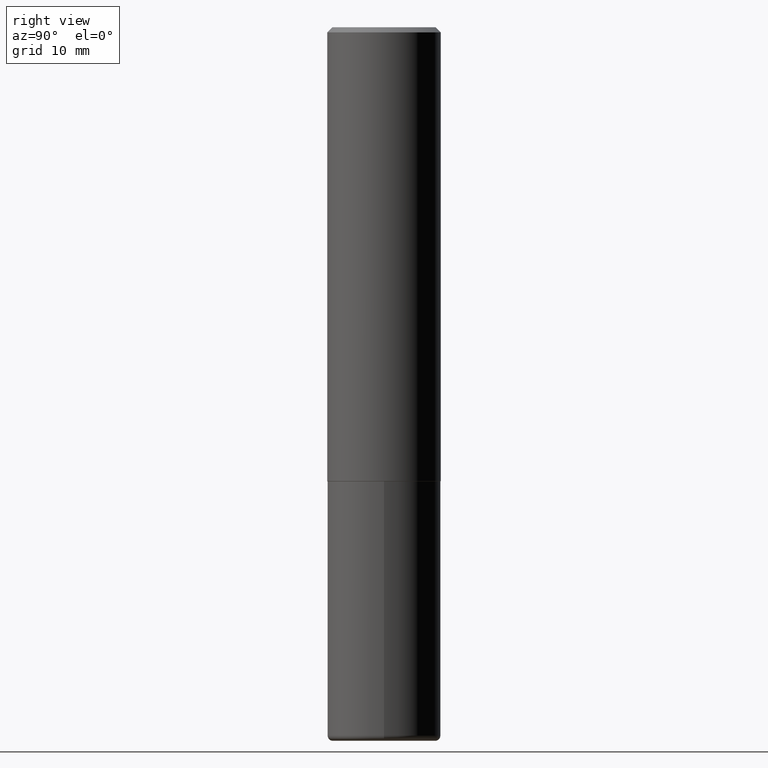
[diagram: clean part render]
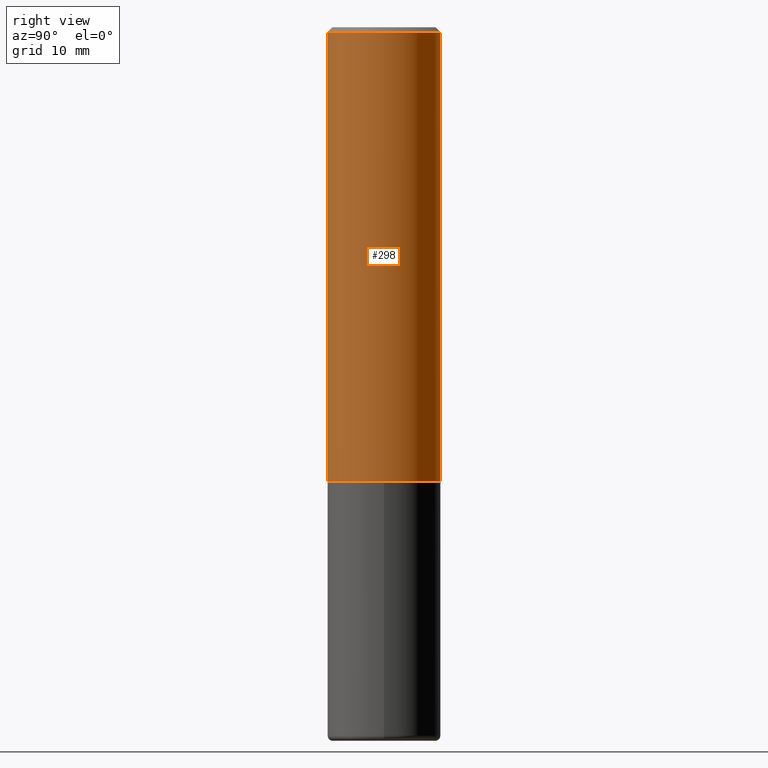
[diagram: same view with one face highlighted and labeled with its STEP entity id]
A machine part, right view. The second image highlights one B-rep face of the part: STEP entity #298.
In plain terms, the highlighted cylindrical surface (partial cylindrical patch) has radius 5.5563 mm, axis along (-0, 0, 1).
Its self-contained STEP definition (entity closure, byte-faithful):
#5 = CARTESIAN_POINT ( 'NONE',  ( 1.554312234475241442E-15, 0.2187499999999940603, -1.749000000000000554 ) ) ;
#18 = AXIS2_PLACEMENT_3D ( 'NONE', #150, #52, #402 ) ;
#34 = EDGE_CURVE ( 'NONE', #268, #336, #279, .T. ) ;
#40 = EDGE_CURVE ( 'NONE', #188, #335, #378, .T. ) ;
#52 = DIRECTION ( 'NONE',  ( -2.445860609712153688E-29, 3.490920253892385141E-15, 1.000000000000000000 ) ) ;
#66 = CYLINDRICAL_SURFACE ( 'NONE', #232, 0.2187500000000000833 ) ;
#67 = DIRECTION ( 'NONE',  ( -6.982962677686265922E-15, -1.000000000000000000, 3.490920253892385141E-15 ) ) ;
#83 = EDGE_LOOP ( 'NONE', ( #106, #270, #214, #368 ) ) ;
#103 = DIRECTION ( 'NONE',  ( -2.445860609712153688E-29, 3.490920253892385141E-15, 1.000000000000000000 ) ) ;
#106 = ORIENTED_EDGE ( 'NONE', *, *, #34, .T. ) ;
#118 = CARTESIAN_POINT ( 'NONE',  ( 4.891721219424319847E-31, -6.981840507784787292E-17, -0.02000000000000005246 ) ) ;
#123 = DIRECTION ( 'NONE',  ( -2.445860609712153688E-29, 3.490920253892384747E-15, 1.000000000000000000 ) ) ;
#130 = FACE_OUTER_BOUND ( 'NONE', #83, .T. ) ;
#150 = CARTESIAN_POINT ( 'NONE',  ( 4.277810206386556213E-29, -6.105619524057781466E-15, -1.748999999999999888 ) ) ;
#154 = LINE ( 'NONE', #257, #391 ) ;
#186 = CARTESIAN_POINT ( 'NONE',  ( -1.527523085743829231E-15, -0.2187500000000063005, -1.748999999999999000 ) ) ;
#188 = VERTEX_POINT ( 'NONE', #412 ) ;
#190 = DIRECTION ( 'NONE',  ( -2.445860609712153688E-29, 3.490920253892385141E-15, 1.000000000000000000 ) ) ;
#202 = EDGE_CURVE ( 'NONE', #336, #335, #154, .T. ) ;
#214 = ORIENTED_EDGE ( 'NONE', *, *, #40, .F. ) ;
#221 = CARTESIAN_POINT ( 'NONE',  ( 0.000000000000000000, 0.000000000000000000, 0.000000000000000000 ) ) ;
#232 = AXIS2_PLACEMENT_3D ( 'NONE', #221, #190, #67 ) ;
#234 = CARTESIAN_POINT ( 'NONE',  ( -1.527523085743871237E-15, -0.2187500000000000833, 7.636388055389595701E-16 ) ) ;
#238 = DIRECTION ( 'NONE',  ( -2.445860609712153688E-29, 3.490920253892384747E-15, 1.000000000000000000 ) ) ;
#257 = CARTESIAN_POINT ( 'NONE',  ( 1.554312234475219551E-15, 0.2187500000000000833, -7.636388055389595701E-16 ) ) ;
#268 = VERTEX_POINT ( 'NONE', #186 ) ;
#270 = ORIENTED_EDGE ( 'NONE', *, *, #202, .T. ) ;
#279 = CIRCLE ( 'NONE', #18, 0.2187500000000001943 ) ;
#292 = LINE ( 'NONE', #234, #296 ) ;
#296 = VECTOR ( 'NONE', #238, 39.37007874015748143 ) ;
#298 = ADVANCED_FACE ( 'NONE', ( #130 ), #66, .T. ) ;
#332 = DIRECTION ( 'NONE',  ( -6.982962677686265922E-15, -1.000000000000000000, 3.492862791899308860E-15 ) ) ;
#335 = VERTEX_POINT ( 'NONE', #354 ) ;
#336 = VERTEX_POINT ( 'NONE', #5 ) ;
#354 = CARTESIAN_POINT ( 'NONE',  ( 1.527523085743870843E-15, 0.2187499999999998890, -0.02000000000000081574 ) ) ;
#368 = ORIENTED_EDGE ( 'NONE', *, *, #400, .F. ) ;
#378 = CIRCLE ( 'NONE', #407, 0.2187499999999999445 ) ;
#391 = VECTOR ( 'NONE', #123, 39.37007874015748143 ) ;
#400 = EDGE_CURVE ( 'NONE', #268, #188, #292, .T. ) ;
#402 = DIRECTION ( 'NONE',  ( -6.982962677686265922E-15, -1.000000000000000000, 3.746534391310986401E-15 ) ) ;
#407 = AXIS2_PLACEMENT_3D ( 'NONE', #118, #103, #332 ) ;
#412 = CARTESIAN_POINT ( 'NONE',  ( -1.500733937012521346E-15, -0.2187500000000000278, -0.01999999999999928571 ) ) ;